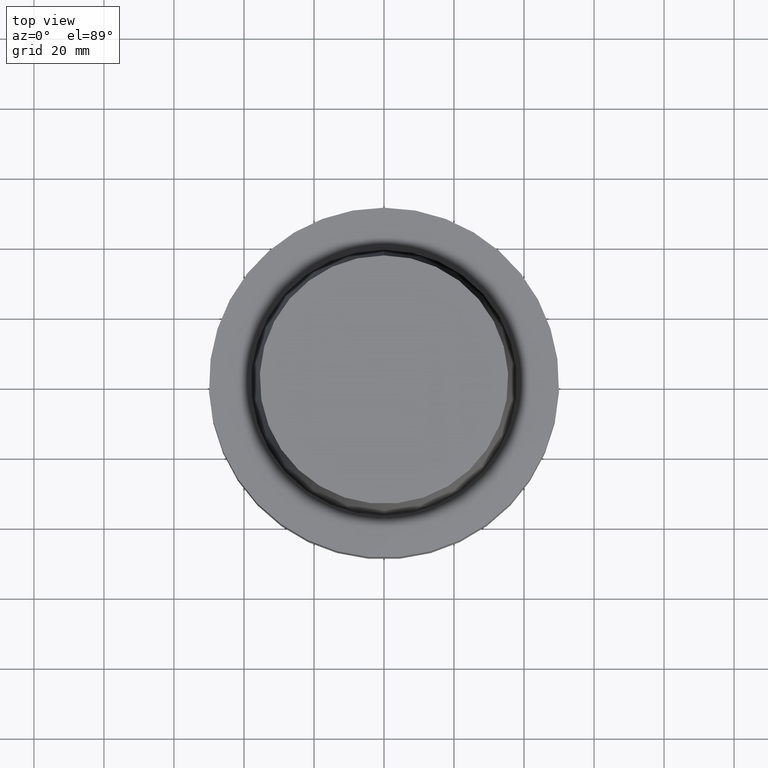
[diagram: clean part render]
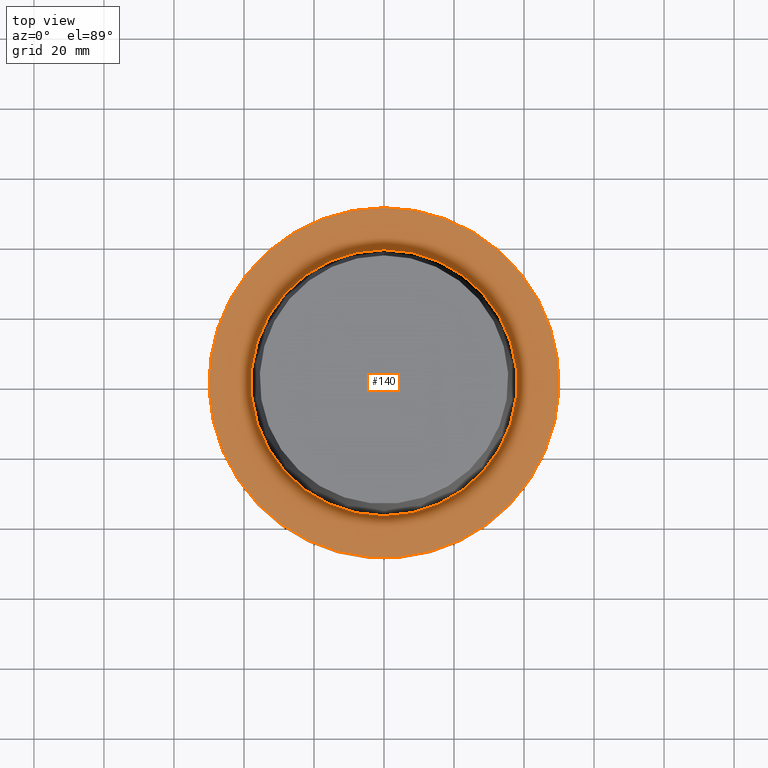
[diagram: same view with one face highlighted and labeled with its STEP entity id]
A machine part, top view. The second image highlights one B-rep face of the part: STEP entity #140.
In plain terms, the highlighted planar face has unit normal (-0, -0, 1).
Its self-contained STEP definition (entity closure, byte-faithful):
#101=EDGE_CURVE('Unnamed[1]',#259,#259,#260,.T.);
#134=EDGE_CURVE('Unnamed[1]',#311,#311,#312,.T.);
#140=ADVANCED_FACE('Unnamed[1]',(#318,#319),#320,.T.);
#259=VERTEX_POINT('',#474);
#260=CIRCLE('',#475,50.0);
#311=VERTEX_POINT('',#539);
#312=CIRCLE('',#540,37.9999999999349);
#318=FACE_OUTER_BOUND('',#547,.T.);
#319=FACE_BOUND('',#548,.T.);
#320=PLANE('',#549);
#474=CARTESIAN_POINT('',(-1.81547968506605E-031,50.0,-9.76766004263236E-016));
#475=AXIS2_PLACEMENT_3D('',#717,#718,#719);
#539=CARTESIAN_POINT('',(-3.3636548776863E-032,37.9999999999349,-2.44634216324803E-015));
#540=AXIS2_PLACEMENT_3D('',#776,#777,#778);
#547=EDGE_LOOP('',(#781));
#548=EDGE_LOOP('',(#782));
#549=AXIS2_PLACEMENT_3D('',#783,#784,#785);
#717=CARTESIAN_POINT('',(0.0,0.0,0.0));
#718=DIRECTION('',(6.12323399573677E-017,1.22464679914735E-016,-1.0));
#719=DIRECTION('',(-1.23259516440783E-032,1.0,1.22464679914735E-016));
#776=CARTESIAN_POINT('',(0.0,0.0,0.0));
#777=DIRECTION('',(6.12323399573677E-017,1.22464679914735E-016,-1.0));
#778=DIRECTION('',(-1.23259516440783E-032,1.0,1.22464679914735E-016));
#781=ORIENTED_EDGE('',*,*,#101,.F.);
#782=ORIENTED_EDGE('',*,*,#134,.T.);
#783=CARTESIAN_POINT('',(-1.07592258641734E-031,43.9999999999675,-1.71155408375563E-015));
#784=DIRECTION('',(-6.12323399573677E-017,-1.22464679914735E-016,1.0));
#785=DIRECTION('',(1.23259516440783E-032,-1.0,-1.22464679914735E-016));